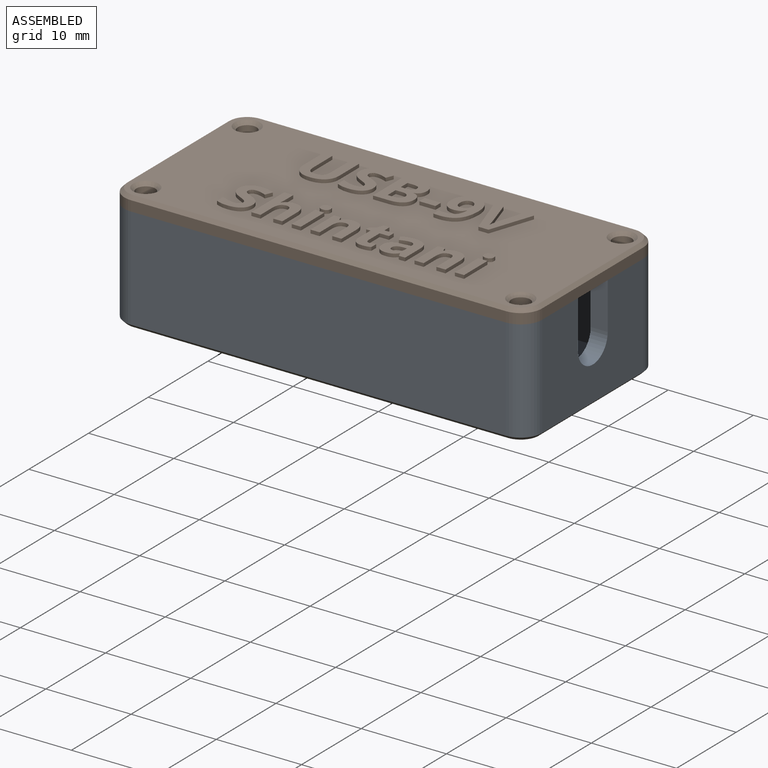
[diagram: assembled view]
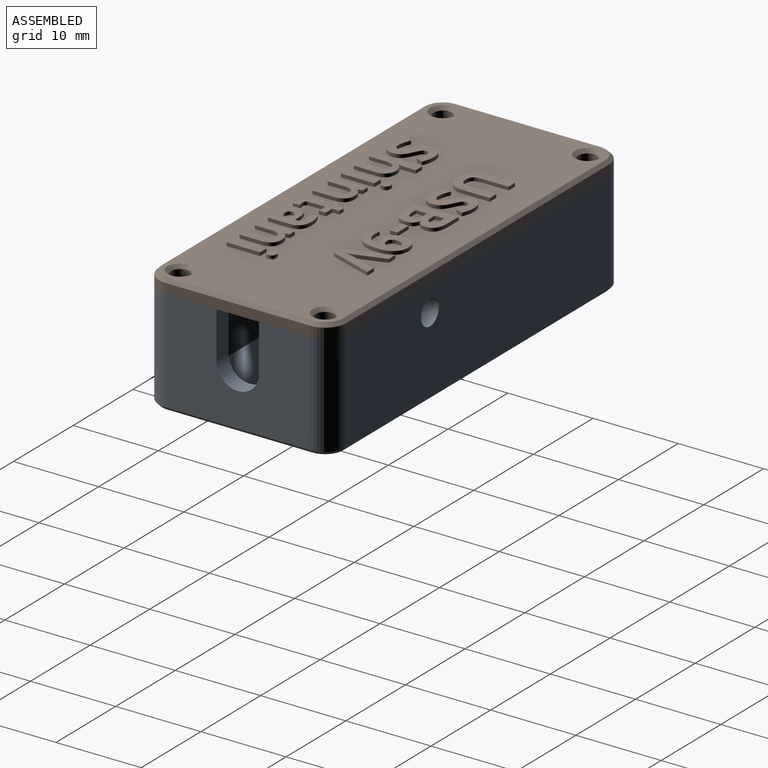
[diagram: assembled view, second angle]
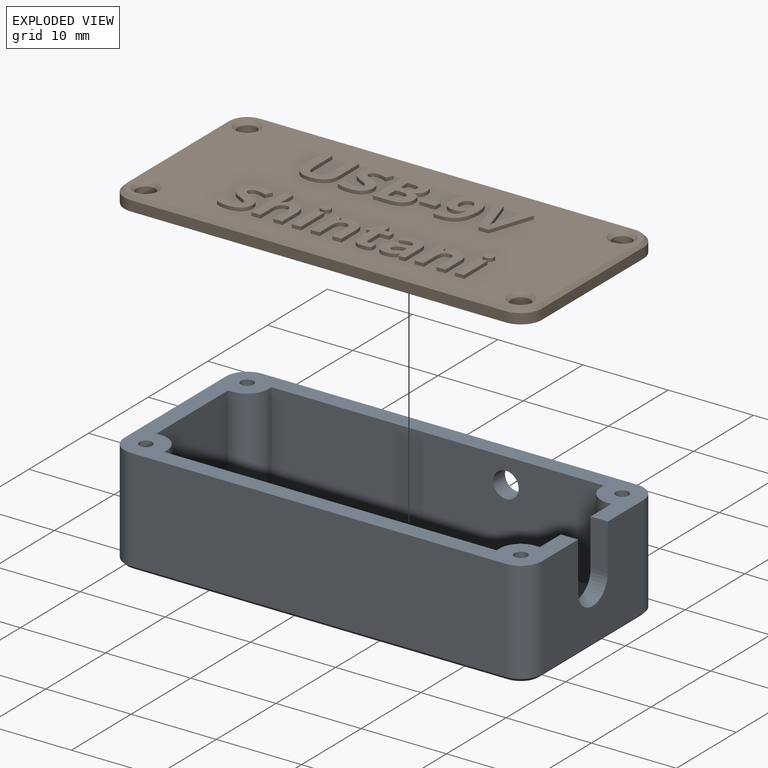
[diagram: exploded view]
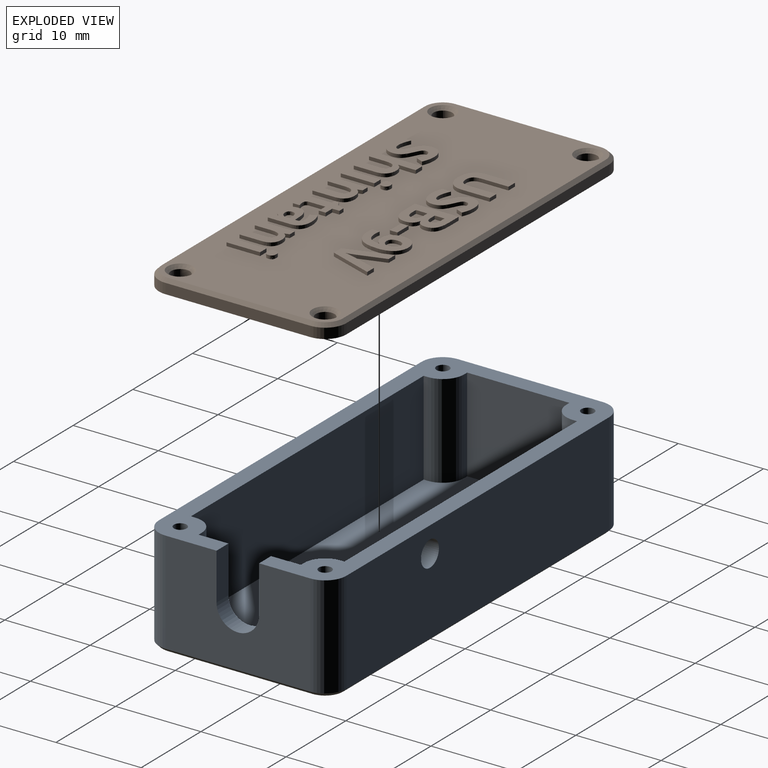
[diagram: exploded view, second angle]
ASSEMBLY  parts=2 mates=2
PART A: 47 faces, bbox 49x22x12.4 mm
  f0: plane 39x11mm, normal (0,-1,0), area 421.9mm2, adj f8,f9,f13,f19,f20
  f1: plane 39x11mm, normal (0,1,0), area 429mm2, adj f8,f9,f14,f17
  f2: plane 12x11mm, normal (-1,0,0), area 94.7mm2, adj f8,f9,f11,f12,f16,f21,f30
  f3: plane 12x11mm, normal (1,0,0), area 132mm2, adj f8,f9,f15,f18
  f4: plane 17x12mm, normal (1,0,0), area 166.7mm2, adj f8,f11,f12,f27,f28,f30,f40
  f5: plane 17x12mm, normal (-1,0,0), area 204mm2, adj f8,f26,f29,f45
  f6: plane 44x12mm, normal (0,-1,0), area 528mm2, adj f8,f26,f27,f44
  f7: plane 44x12mm, normal (0,1,0), area 520.9mm2, adj f8,f13,f28,f29,f41
  f8: plane 49x22mm, normal (0,0,1), area 276.2mm2, adj f0,f1,f2,f3,f4,f5,f6,f7
  f9: plane 45x18mm, normal (0,0,1), area 779.4mm2, adj f0,f1,f2,f3,f14,f15,f16,f17
  f10: plane 48.2x21.2mm, normal (0,0,-1), area 1018.1mm2, adj f39,f40,f41,f42,f43,f44,f45,f46
  f11: plane 5.5x2mm, normal (0,1,0), area 11mm2, adj f2,f4,f8,f30
  f12: plane 5.5x2mm, normal (0,-1,0), area 11mm2, adj f2,f4,f8,f30
  f13: cylinder r=1.5mm len=3mm, axis (0,1,0), area 18.8mm2, adj f0,f7
  f14: plane 11x0.5mm, normal (1,0,0), area 5.5mm2, adj f1,f8,f9,f25
  f15: plane 11x0.5mm, normal (0,1,0), area 5.5mm2, adj f3,f8,f9,f25
  f16: plane 11x0.5mm, normal (0,1,0), area 5.5mm2, adj f2,f8,f9,f24
  f17: plane 11x0.5mm, normal (-1,0,0), area 5.5mm2, adj f1,f8,f9,f24
  f18: plane 11x0.5mm, normal (0,-1,0), area 5.5mm2, adj f3,f8,f9,f23
  f19: plane 11x0.5mm, normal (1,0,0), area 5.5mm2, adj f0,f8,f9,f23
  f20: plane 11x0.5mm, normal (-1,0,0), area 5.5mm2, adj f0,f8,f9,f22
  f21: plane 11x0.5mm, normal (0,-1,0), area 5.5mm2, adj f2,f8,f9,f22
  f22: cylinder r=2.5mm len=11mm, axis (0,0,1), area 43.2mm2, adj f8,f9,f20,f21
  f23: cylinder r=2.5mm len=11mm, axis (0,0,1), area 43.2mm2, adj f8,f9,f18,f19
  f24: cylinder r=2.5mm len=11mm, axis (0,0,1), area 43.2mm2, adj f8,f9,f16,f17
  f25: cylinder r=2.5mm len=11mm, axis (0,0,1), area 43.2mm2, adj f8,f9,f14,f15
  f26: cylinder r=2.5mm len=12mm, axis (0,0,-1), area 47.1mm2, adj f5,f6,f8,f46
  f27: cylinder r=2.5mm len=12mm, axis (0,0,1), area 47.1mm2, adj f4,f6,f8,f42
  f28: cylinder r=2.5mm len=12mm, axis (0,0,-1), area 47.1mm2, adj f4,f7,f8,f39
  f29: cylinder r=2.5mm len=12mm, axis (0,0,1), area 47.1mm2, adj f5,f7,f8,f43
  f30: cylinder r=2.5mm len=5mm, axis (-1,0,0), area 15.7mm2, adj f2,f4,f11,f12
  f31: cylinder r=0.75mm len=8mm, axis (0,0,1), area 37.7mm2, adj f8,f32
  f32: cone r=0mm half-angle=59deg, axis (0,0,1), area 2.1mm2, adj f31
  f33: cylinder r=0.75mm len=8mm, axis (0,0,1), area 37.7mm2, adj f8,f34
  f34: cone r=0mm half-angle=59deg, axis (0,0,1), area 2.1mm2, adj f33
  f35: cylinder r=0.75mm len=8mm, axis (0,0,1), area 37.7mm2, adj f8,f36
  f36: cone r=0mm half-angle=59deg, axis (0,0,1), area 2.1mm2, adj f35
  f37: cylinder r=0.75mm len=8mm, axis (0,0,1), area 37.7mm2, adj f8,f38
  f38: cone r=0mm half-angle=59deg, axis (0,0,1), area 2.1mm2, adj f37
  f39: cone r=2.1mm half-angle=45deg, axis (0,0,1), area 2mm2, adj f10,f28,f40,f41
  f40: plane 17x0.4mm, normal (0.71,0,-0.71), area 9.6mm2, adj f4,f10,f39,f42
  f41: plane 44x0.4mm, normal (0,0.71,-0.71), area 24.9mm2, adj f7,f10,f39,f43
  f42: cone r=2.1mm half-angle=45deg, axis (0,0,1), area 2mm2, adj f10,f27,f40,f44
  f43: cone r=2.1mm half-angle=45deg, axis (0,0,1), area 2mm2, adj f10,f29,f41,f45
  f44: plane 44x0.4mm, normal (0,-0.71,-0.71), area 24.9mm2, adj f6,f10,f42,f46
  f45: plane 17x0.4mm, normal (-0.71,0,-0.71), area 9.6mm2, adj f5,f10,f43,f46
  f46: cone r=2.1mm half-angle=45deg, axis (0,0,1), area 2mm2, adj f10,f26,f44,f45
PART B: 294 faces, bbox 49x22x2 mm
  f0: plane 48.2x21.2mm, normal (0,0,1), area 856.5mm2, adj f14,f15,f16,f17,f18,f19,f20,f21
  f1: plane 17x1.2mm, normal (-1,0,0), area 20.4mm2, adj f5,f6,f9,f21
  f2: plane 44x1.2mm, normal (0,-1,0), area 52.8mm2, adj f5,f6,f7,f25
  f3: plane 17x1.2mm, normal (1,0,0), area 20.4mm2, adj f5,f7,f8,f22
  f4: plane 44x1.2mm, normal (0,1,0), area 52.8mm2, adj f5,f8,f9,f18
  f5: plane 49x22mm, normal (0,0,-1), area 1057.4mm2, adj f1,f2,f3,f4,f6,f7,f8,f9
  f6: cylinder r=2.5mm len=2.5mm, axis (0,0,-1), area 4.7mm2, adj f1,f2,f5,f23
  f7: cylinder r=2.5mm len=2.5mm, axis (0,0,1), area 4.7mm2, adj f2,f3,f5,f24
  f8: cylinder r=2.5mm len=2.5mm, axis (0,0,-1), area 4.7mm2, adj f3,f4,f5,f20
  f9: cylinder r=2.5mm len=2.5mm, axis (0,0,1), area 4.7mm2, adj f1,f4,f5,f19
  f10: cylinder r=1.1mm len=2.2mm, axis (0,0,1), area 8.3mm2, adj f5,f17
  f11: cylinder r=1.1mm len=2.2mm, axis (0,0,1), area 8.3mm2, adj f5,f16
  f12: cylinder r=1.1mm len=2.2mm, axis (0,0,1), area 8.3mm2, adj f5,f15
  f13: cylinder r=1.1mm len=2.2mm, axis (0,0,1), area 8.3mm2, adj f5,f14
  f14: cone r=1.1mm half-angle=45deg, axis (0,0,1), area 4.6mm2, adj f0,f13
  f15: cone r=1.1mm half-angle=45deg, axis (0,0,1), area 4.6mm2, adj f0,f12
  f16: cone r=1.1mm half-angle=45deg, axis (0,0,1), area 4.6mm2, adj f0,f11
  f17: cone r=1.1mm half-angle=45deg, axis (0,0,1), area 4.6mm2, adj f0,f10
  f18: plane 44x0.4mm, normal (0,0.71,0.71), area 24.9mm2, adj f0,f4,f19,f20
  f19: cone r=2.1mm half-angle=45deg, axis (0,0,-1), area 2mm2, adj f0,f9,f18,f21
  f20: cone r=2.1mm half-angle=45deg, axis (0,0,-1), area 2mm2, adj f0,f8,f18,f22
  f21: plane 17x0.4mm, normal (-0.71,0,0.71), area 9.6mm2, adj f0,f1,f19,f23
  f22: plane 17x0.4mm, normal (0.71,0,0.71), area 9.6mm2, adj f0,f3,f20,f24
  f23: cone r=2.1mm half-angle=45deg, axis (0,0,-1), area 2mm2, adj f0,f6,f21,f25
  f24: cone r=2.1mm half-angle=45deg, axis (0,0,-1), area 2mm2, adj f0,f7,f22,f25
  f25: plane 44x0.4mm, normal (0,-0.71,0.71), area 24.9mm2, adj f0,f2,f23,f24
  f26: plane 1.09x0.4mm, normal (0,1,0), area 0.4mm2, adj f0,f27,f40,f41
  f27: plane 3.14x0.4mm, normal (-1,0,0), area 1.3mm2, adj f0,f26,f28,f41
  f28: extruded ~0.88x0.4mm, area 0.4mm2, adj f0,f27,f29,f41
  f29: extruded ~0.78x0.4mm, area 0.3mm2, adj f0,f28,f30,f41
  f30: extruded ~0.79x0.4mm, area 0.3mm2, adj f0,f29,f31,f41
  f31: extruded ~0.87x0.4mm, area 0.4mm2, adj f0,f30,f32,f41
  f32: plane 3.15x0.4mm, normal (1,0,0), area 1.3mm2, adj f0,f31,f33,f41
  f33: plane 1.09x0.4mm, normal (0,1,0), area 0.4mm2, adj f0,f32,f34,f41
  f34: plane 3.31x0.4mm, normal (-1,0,0), area 1.3mm2, adj f0,f33,f35,f41
  f35: extruded ~1.39x0.55mm, area 0.6mm2, adj f0,f34,f36,f41
  f36: extruded ~1.54x0.51mm, area 0.7mm2, adj f0,f35,f37,f41
  f37: extruded ~1.14x0.4mm, area 0.5mm2, adj f0,f36,f38,f41
  f38: extruded ~0.74x0.66mm, area 0.4mm2, adj f0,f37,f39,f41
  f39: extruded ~1x0.4mm, area 0.4mm2, adj f0,f38,f40,f41
  f40: plane 3.33x0.4mm, normal (1,0,0), area 1.3mm2, adj f0,f26,f39,f41
  f41: plane 5.21x4.22mm, normal (0,0,1), area 12.1mm2, adj f26,f27,f28,f29,f30,f31,f32,f33
  f42: extruded ~0.85x0.4mm, area 0.4mm2, adj f0,f43,f69,f70
  f43: extruded ~0.99x0.69mm, area 0.5mm2, adj f0,f42,f44,f70
  f44: extruded ~0.69x0.4mm, area 0.3mm2, adj f0,f43,f45,f70
  f45: extruded ~0.4x0.21mm, area 0.1mm2, adj f0,f44,f46,f70
  f46: extruded ~0.4x0.25mm, area 0.1mm2, adj f0,f45,f47,f70
  f47: extruded ~0.4x0.38mm, area 0.2mm2, adj f0,f46,f48,f70
  f48: extruded ~0.48x0.4mm, area 0.2mm2, adj f0,f47,f49,f70
  f49: extruded ~0.53x0.4mm, area 0.2mm2, adj f0,f48,f50,f70
  f50: extruded ~0.68x0.4mm, area 0.3mm2, adj f0,f49,f51,f70
  f51: plane 0.85x0.4mm, normal (0.92,-0.38,0), area 0.4mm2, adj f0,f50,f52,f70
  f52: extruded ~0.76x0.4mm, area 0.3mm2, adj f0,f51,f53,f70
  f53: extruded ~0.77x0.4mm, area 0.3mm2, adj f0,f52,f54,f70
  f54: extruded ~1.28x0.4mm, area 0.5mm2, adj f0,f53,f55,f70
  f55: extruded ~1.07x0.46mm, area 0.5mm2, adj f0,f54,f56,f70
  f56: extruded ~0.63x0.4mm, area 0.3mm2, adj f0,f55,f57,f70
  f57: extruded ~0.48x0.4mm, area 0.2mm2, adj f0,f56,f58,f70
  f58: extruded ~0.71x0.43mm, area 0.3mm2, adj f0,f57,f59,f70
  f59: extruded ~0.67x0.4mm, area 0.3mm2, adj f0,f58,f60,f70
  f60: extruded ~0.4x0.25mm, area 0.1mm2, adj f0,f59,f61,f70
  f61: extruded ~0.4x0.27mm, area 0.1mm2, adj f0,f60,f62,f70
  f62: extruded ~0.41x0.4mm, area 0.2mm2, adj f0,f61,f63,f70
  f63: extruded ~0.55x0.4mm, area 0.2mm2, adj f0,f62,f64,f70
  f64: extruded ~0.66x0.4mm, area 0.3mm2, adj f0,f63,f65,f70
  f65: extruded ~0.88x0.4mm, area 0.4mm2, adj f0,f64,f66,f70
  f66: plane 1.01x0.4mm, normal (-1,0,0), area 0.4mm2, adj f0,f65,f67,f70
  f67: extruded ~1.46x0.4mm, area 0.6mm2, adj f0,f66,f68,f70
  f68: extruded ~1.39x0.4mm, area 0.6mm2, adj f0,f67,f69,f70
  f69: extruded ~1.1x0.5mm, area 0.5mm2, adj f0,f42,f68,f70
  f70: plane 5.29x3.35mm, normal (0,0,1), area 10mm2, adj f42,f43,f44,f45,f46,f47,f48,f49
  f71: plane 5.14x0.4mm, normal (-1,0,0), area 2.1mm2, adj f0,f72,f95,f96
  f72: plane 1.92x0.4mm, normal (0,-1,0), area 0.8mm2, adj f0,f71,f73,f96
  f73: extruded ~1.38x0.4mm, area 0.6mm2, adj f0,f72,f74,f96
  f74: extruded ~1.1x0.51mm, area 0.5mm2, adj f0,f73,f75,f96
  f75: extruded ~0.8x0.4mm, area 0.3mm2, adj f0,f74,f76,f96
  f76: extruded ~0.71x0.41mm, area 0.3mm2, adj f0,f75,f77,f96
  f77: plane 0.4x0.04mm, normal (1,0,0), area 0mm2, adj f0,f76,f78,f96
  f78: extruded ~0.58x0.4mm, area 0.3mm2, adj f0,f77,f79,f96
  f79: extruded ~0.76x0.4mm, area 0.3mm2, adj f0,f78,f80,f96
  f80: extruded ~0.99x0.49mm, area 0.5mm2, adj f0,f79,f81,f96
  f81: extruded ~1.59x0.4mm, area 0.7mm2, adj f0,f80,f95,f96
  f82: plane 1.14x0.4mm, normal (1,0,0), area 0.5mm2, adj f83,f93,f96,f98
  f83: plane 0.57x0.4mm, normal (0,-1,0), area 0.2mm2, adj f82,f84,f96,f98
  f84: extruded ~0.68x0.4mm, area 0.3mm2, adj f83,f85,f96,f98
  f85: extruded ~0.42x0.4mm, area 0.2mm2, adj f84,f86,f96,f98
  f86: extruded ~0.45x0.4mm, area 0.2mm2, adj f85,f87,f96,f98
  f87: extruded ~0.64x0.4mm, area 0.3mm2, adj f86,f93,f96,f98
  f88: plane 0.68x0.4mm, normal (0,-1,0), area 0.3mm2, adj f89,f94,f96,f97
  f89: extruded ~0.91x0.64mm, area 0.5mm2, adj f88,f90,f96,f97
  f90: extruded ~0.53x0.4mm, area 0.2mm2, adj f89,f91,f96,f97
  f91: extruded ~0.66x0.4mm, area 0.3mm2, adj f90,f92,f96,f97
  f92: plane 0.71x0.4mm, normal (0,1,0), area 0.3mm2, adj f91,f94,f96,f97
  f93: plane 0.63x0.4mm, normal (0,1,0), area 0.3mm2, adj f82,f87,f96,f98
  f94: plane 1.34x0.4mm, normal (1,0,0), area 0.5mm2, adj f88,f92,f96,f97
  f95: plane 1.6x0.4mm, normal (0,1,0), area 0.6mm2, adj f0,f71,f81,f96
  f96: plane 5.14x3.81mm, normal (0,0,1), area 14.4mm2, adj f71,f72,f73,f74,f75,f76,f77,f78
  f97: plane 1.59x1.34mm, normal (0,0,1), area 1.9mm2, adj f88,f89,f90,f91,f92,f94
  f98: plane 1.47x1.14mm, normal (0,0,1), area 1.5mm2, adj f82,f83,f84,f85,f86,f87,f93
  f99: plane 1.89x0.4mm, normal (0,-1,0), area 0.8mm2, adj f0,f100,f102,f103
  f100: plane 0.88x0.4mm, normal (1,0,0), area 0.4mm2, adj f0,f99,f101,f103
  f101: plane 1.89x0.4mm, normal (0,1,0), area 0.8mm2, adj f0,f100,f102,f103
  f102: plane 0.88x0.4mm, normal (-1,0,0), area 0.4mm2, adj f0,f99,f101,f103
  f103: plane 1.89x0.88mm, normal (0,0,1), area 1.7mm2, adj f99,f100,f101,f102
  f104: extruded ~1.21x0.4mm, area 0.5mm2, adj f0,f105,f129,f130
  f105: extruded ~0.78x0.66mm, area 0.4mm2, adj f0,f104,f106,f130
  f106: extruded ~1x0.4mm, area 0.4mm2, adj f0,f105,f107,f130
  f107: extruded ~1.28x0.48mm, area 0.6mm2, adj f0,f106,f108,f130
  f108: extruded ~1.31x0.47mm, area 0.6mm2, adj f0,f107,f109,f130
  f109: extruded ~1.2x0.4mm, area 0.5mm2, adj f0,f108,f110,f130
  f110: extruded ~1.06x0.43mm, area 0.5mm2, adj f0,f109,f111,f130
  f111: extruded ~0.67x0.4mm, area 0.3mm2, adj f0,f110,f112,f130
  f112: extruded ~0.47x0.46mm, area 0.3mm2, adj f0,f111,f113,f130
  f113: plane 0.4x0.04mm, normal (0,-1,0), area 0mm2, adj f0,f112,f114,f130
  f114: extruded ~0.95x0.4mm, area 0.4mm2, adj f0,f113,f115,f130
  f115: extruded ~0.54x0.5mm, area 0.3mm2, adj f0,f114,f116,f130
  f116: extruded ~0.9x0.4mm, area 0.4mm2, adj f0,f115,f117,f130
  f117: extruded ~0.62x0.4mm, area 0.2mm2, adj f0,f116,f118,f130
  f118: plane 0.87x0.4mm, normal (-1,0,0), area 0.3mm2, adj f0,f117,f119,f130
  f119: extruded ~0.69x0.4mm, area 0.3mm2, adj f0,f118,f120,f130
  f120: extruded ~1.94x0.75mm, area 0.9mm2, adj f0,f119,f129,f130
  f121: extruded ~0.56x0.4mm, area 0.3mm2, adj f122,f128,f130,f131
  f122: extruded ~0.71x0.4mm, area 0.3mm2, adj f121,f123,f130,f131
  f123: extruded ~0.5x0.4mm, area 0.2mm2, adj f122,f124,f130,f131
  f124: extruded ~0.57x0.4mm, area 0.2mm2, adj f123,f125,f130,f131
  f125: extruded ~0.52x0.4mm, area 0.2mm2, adj f124,f126,f130,f131
  f126: extruded ~0.59x0.4mm, area 0.3mm2, adj f125,f127,f130,f131
  f127: extruded ~0.67x0.4mm, area 0.3mm2, adj f126,f128,f130,f131
  f128: extruded ~0.53x0.4mm, area 0.2mm2, adj f121,f127,f130,f131
  f129: extruded ~2.27x0.64mm, area 1mm2, adj f0,f104,f120,f130
  f130: plane 5.27x3.63mm, normal (0,0,1), area 11.3mm2, adj f104,f105,f106,f107,f108,f109,f110,f111
  f131: plane 1.71x1.5mm, normal (0,0,1), area 2.1mm2, adj f121,f122,f123,f124,f125,f126,f127,f128
  f132: plane 3.06x0.97mm, normal (-0.95,0.3,0), area 1.3mm2, adj f0,f133,f141,f142
  f133: extruded ~1.13x0.4mm, area 0.5mm2, adj f0,f132,f134,f142
  f134: extruded ~0.5x0.4mm, area 0.2mm2, adj f0,f133,f135,f142
  f135: extruded ~0.63x0.4mm, area 0.3mm2, adj f0,f134,f136,f142
  f136: plane 3.06x0.97mm, normal (0.95,0.3,0), area 1.3mm2, adj f0,f135,f137,f142
  f137: plane 1.1x0.4mm, normal (0,1,0), area 0.4mm2, adj f0,f136,f138,f142
  f138: plane 5.14x1.74mm, normal (-0.95,-0.32,0), area 2.2mm2, adj f0,f137,f139,f142
  f139: plane 1.19x0.4mm, normal (0,-1,0), area 0.5mm2, adj f0,f138,f140,f142
  f140: plane 5.14x1.75mm, normal (0.95,-0.32,0), area 2.2mm2, adj f0,f139,f141,f142
  f141: plane 1.1x0.4mm, normal (0,1,0), area 0.4mm2, adj f0,f132,f140,f142
  f142: plane 5.14x4.68mm, normal (0,0,1), area 10.2mm2, adj f132,f133,f134,f135,f136,f137,f138,f139
  f143: extruded ~0.85x0.4mm, area 0.4mm2, adj f0,f144,f170,f171
  f144: extruded ~0.99x0.69mm, area 0.5mm2, adj f0,f143,f145,f171
  f145: extruded ~0.69x0.4mm, area 0.3mm2, adj f0,f144,f146,f171
  f146: extruded ~0.4x0.21mm, area 0.1mm2, adj f0,f145,f147,f171
  f147: extruded ~0.4x0.25mm, area 0.1mm2, adj f0,f146,f148,f171
  f148: extruded ~0.4x0.38mm, area 0.2mm2, adj f0,f147,f149,f171
  f149: extruded ~0.48x0.4mm, area 0.2mm2, adj f0,f148,f150,f171
  f150: extruded ~0.53x0.4mm, area 0.2mm2, adj f0,f149,f151,f171
  f151: extruded ~0.68x0.4mm, area 0.3mm2, adj f0,f150,f152,f171
  f152: plane 0.85x0.4mm, normal (0.92,-0.38,0), area 0.4mm2, adj f0,f151,f153,f171
  f153: extruded ~0.76x0.4mm, area 0.3mm2, adj f0,f152,f154,f171
  f154: extruded ~0.77x0.4mm, area 0.3mm2, adj f0,f153,f155,f171
  f155: extruded ~1.28x0.4mm, area 0.5mm2, adj f0,f154,f156,f171
  f156: extruded ~1.07x0.46mm, area 0.5mm2, adj f0,f155,f157,f171
  f157: extruded ~0.63x0.4mm, area 0.3mm2, adj f0,f156,f158,f171
  f158: extruded ~0.48x0.4mm, area 0.2mm2, adj f0,f157,f159,f171
  f159: extruded ~0.71x0.43mm, area 0.3mm2, adj f0,f158,f160,f171
  f160: extruded ~0.67x0.4mm, area 0.3mm2, adj f0,f159,f161,f171
  f161: extruded ~0.4x0.25mm, area 0.1mm2, adj f0,f160,f162,f171
  f162: extruded ~0.4x0.27mm, area 0.1mm2, adj f0,f161,f163,f171
  f163: extruded ~0.41x0.4mm, area 0.2mm2, adj f0,f162,f164,f171
  f164: extruded ~0.55x0.4mm, area 0.2mm2, adj f0,f163,f165,f171
  f165: extruded ~0.66x0.4mm, area 0.3mm2, adj f0,f164,f166,f171
  f166: extruded ~0.88x0.4mm, area 0.4mm2, adj f0,f165,f167,f171
  f167: plane 1.01x0.4mm, normal (-1,0,0), area 0.4mm2, adj f0,f166,f168,f171
  f168: extruded ~1.46x0.4mm, area 0.6mm2, adj f0,f167,f169,f171
  f169: extruded ~1.39x0.4mm, area 0.6mm2, adj f0,f168,f170,f171
  f170: extruded ~1.1x0.5mm, area 0.5mm2, adj f0,f143,f169,f171
  f171: plane 5.29x3.35mm, normal (0,0,1), area 10mm2, adj f143,f144,f145,f146,f147,f148,f149,f150
  f172: plane 2.56x0.4mm, normal (1,0,0), area 1mm2, adj f0,f173,f188,f189
  f173: extruded ~1.07x0.4mm, area 0.5mm2, adj f0,f172,f174,f189
  f174: extruded ~1.05x0.4mm, area 0.5mm2, adj f0,f173,f175,f189
  f175: extruded ~1.14x0.58mm, area 0.5mm2, adj f0,f174,f176,f189
  f176: plane 0.4x0.06mm, normal (0,1,0), area 0mm2, adj f0,f175,f177,f189
  f177: plane 0.4x0.32mm, normal (1,-0.08,0), area 0.1mm2, adj f0,f176,f178,f189
  f178: extruded ~0.61x0.4mm, area 0.2mm2, adj f0,f177,f179,f189
  f179: plane 1.12x0.4mm, normal (1,0,0), area 0.4mm2, adj f0,f178,f180,f189
  f180: plane 1.07x0.4mm, normal (0,1,0), area 0.4mm2, adj f0,f179,f181,f189
  f181: plane 5.47x0.4mm, normal (-1,0,0), area 2.2mm2, adj f0,f180,f182,f189
  f182: plane 1.07x0.4mm, normal (0,-1,0), area 0.4mm2, adj f0,f181,f183,f189
  f183: plane 1.85x0.4mm, normal (1,0,0), area 0.7mm2, adj f0,f182,f184,f189
  f184: extruded ~0.99x0.4mm, area 0.4mm2, adj f0,f183,f185,f189
  f185: extruded ~0.65x0.4mm, area 0.3mm2, adj f0,f184,f186,f189
  f186: extruded ~0.85x0.63mm, area 0.5mm2, adj f0,f185,f187,f189
  f187: plane 2.3x0.4mm, normal (-1,0,0), area 0.9mm2, adj f0,f186,f188,f189
  f188: plane 1.07x0.4mm, normal (0,-1,0), area 0.4mm2, adj f0,f172,f187,f189
  f189: plane 5.47x3.63mm, normal (0,0,1), area 11.1mm2, adj f172,f173,f174,f175,f176,f177,f178,f179
  f190: extruded ~0.58x0.53mm, area 0.4mm2, adj f0,f191,f194,f195
  f191: extruded ~0.44x0.4mm, area 0.2mm2, adj f0,f190,f192,f195
  f192: extruded ~0.4x0.39mm, area 0.2mm2, adj f0,f191,f193,f195
  f193: extruded ~0.58x0.52mm, area 0.4mm2, adj f0,f192,f194,f195
  f194: extruded ~0.58x0.52mm, area 0.4mm2, adj f0,f190,f193,f195
  f195: plane 1.17x1.05mm, normal (0,0,1), area 1mm2, adj f190,f191,f192,f193,f194
  f196: plane 3.93x0.4mm, normal (1,0,0), area 1.6mm2, adj f0,f197,f199,f200
  f197: plane 1.07x0.4mm, normal (0,1,0), area 0.4mm2, adj f0,f196,f198,f200
  f198: plane 3.93x0.4mm, normal (-1,0,0), area 1.6mm2, adj f0,f197,f199,f200
  f199: plane 1.07x0.4mm, normal (0,-1,0), area 0.4mm2, adj f0,f196,f198,f200
  f200: plane 3.93x1.07mm, normal (0,0,1), area 4.2mm2, adj f196,f197,f198,f199
  f201: plane 2.56x0.4mm, normal (1,0,0), area 1mm2, adj f0,f202,f217,f218
  f202: extruded ~1.07x0.4mm, area 0.5mm2, adj f0,f201,f203,f218
  f203: extruded ~1.04x0.4mm, area 0.5mm2, adj f0,f202,f204,f218
  f204: extruded ~0.72x0.4mm, area 0.3mm2, adj f0,f203,f205,f218
  f205: extruded ~0.49x0.43mm, area 0.3mm2, adj f0,f204,f206,f218
  f206: plane 0.4x0.06mm, normal (0,1,0), area 0mm2, adj f0,f205,f207,f218
  f207: plane 0.5x0.4mm, normal (0.96,0.28,0), area 0.2mm2, adj f0,f206,f208,f218
  f208: plane 0.82x0.4mm, normal (0,1,0), area 0.3mm2, adj f0,f207,f209,f218
  f209: plane 3.93x0.4mm, normal (-1,0,0), area 1.6mm2, adj f0,f208,f210,f218
  f210: plane 1.07x0.4mm, normal (0,-1,0), area 0.4mm2, adj f0,f209,f211,f218
  f211: plane 1.85x0.4mm, normal (1,0,0), area 0.7mm2, adj f0,f210,f212,f218
  f212: extruded ~1x0.4mm, area 0.4mm2, adj f0,f211,f213,f218
  f213: extruded ~0.65x0.4mm, area 0.3mm2, adj f0,f212,f214,f218
  f214: extruded ~0.48x0.4mm, area 0.2mm2, adj f0,f213,f215,f218
  f215: extruded ~0.64x0.4mm, area 0.3mm2, adj f0,f214,f216,f218
  f216: plane 2.3x0.4mm, normal (-1,0,0), area 0.9mm2, adj f0,f215,f217,f218
  f217: plane 1.07x0.4mm, normal (0,-1,0), area 0.4mm2, adj f0,f201,f216,f218
  f218: plane 4.01x3.63mm, normal (0,0,1), area 9.4mm2, adj f201,f202,f203,f204,f205,f206,f207,f208
  f219: extruded ~0.4x0.34mm, area 0.1mm2, adj f0,f220,f236,f237
  f220: extruded ~0.4x0.34mm, area 0.1mm2, adj f0,f219,f221,f237
  f221: plane 1.9x0.4mm, normal (1,0,0), area 0.8mm2, adj f0,f220,f222,f237
  f222: plane 1.1x0.4mm, normal (0,-1,0), area 0.4mm2, adj f0,f221,f223,f237
  f223: plane 0.81x0.4mm, normal (1,0,0), area 0.3mm2, adj f0,f222,f224,f237
  f224: plane 1.1x0.4mm, normal (0,1,0), area 0.4mm2, adj f0,f223,f225,f237
  f225: plane 0.84x0.4mm, normal (1,0,0), area 0.3mm2, adj f0,f224,f226,f237
  f226: plane 0.69x0.4mm, normal (0,1,0), area 0.3mm2, adj f0,f225,f227,f237
  f227: plane 0.83x0.4mm, normal (-0.94,0.35,0), area 0.4mm2, adj f0,f226,f228,f237
  f228: plane 0.59x0.4mm, normal (-0.52,0.85,0), area 0.3mm2, adj f0,f227,f229,f237
  f229: plane 0.45x0.4mm, normal (-1,0,0), area 0.2mm2, adj f0,f228,f230,f237
  f230: plane 0.51x0.4mm, normal (0,-1,0), area 0.2mm2, adj f0,f229,f231,f237
  f231: plane 1.9x0.4mm, normal (-1,0,0), area 0.8mm2, adj f0,f230,f232,f237
  f232: extruded ~0.98x0.4mm, area 0.4mm2, adj f0,f231,f233,f237
  f233: extruded ~0.94x0.4mm, area 0.4mm2, adj f0,f232,f234,f237
  f234: extruded ~0.99x0.4mm, area 0.4mm2, adj f0,f233,f235,f237
  f235: plane 0.8x0.4mm, normal (1,0,0), area 0.3mm2, adj f0,f234,f236,f237
  f236: extruded ~0.68x0.4mm, area 0.3mm2, adj f0,f219,f235,f237
  f237: plane 4.84x2.73mm, normal (0,0,1), area 6.9mm2, adj f219,f220,f221,f222,f223,f224,f225,f226
  f238: plane 0.75x0.4mm, normal (0,-1,0), area 0.3mm2, adj f0,f239,f262,f263
  f239: plane 2.62x0.4mm, normal (1,0,0), area 1mm2, adj f0,f238,f240,f263
  f240: extruded ~1.05x0.42mm, area 0.5mm2, adj f0,f239,f241,f263
  f241: extruded ~1.21x0.4mm, area 0.5mm2, adj f0,f240,f242,f263
  f242: extruded ~1.51x0.4mm, area 0.6mm2, adj f0,f241,f243,f263
  f243: plane 0.73x0.4mm, normal (-0.9,-0.44,0), area 0.3mm2, adj f0,f242,f244,f263
  f244: extruded ~1.11x0.4mm, area 0.5mm2, adj f0,f243,f245,f263
  f245: extruded ~0.61x0.6mm, area 0.4mm2, adj f0,f244,f246,f263
  f246: plane 0.4x0.17mm, normal (-1,0,0), area 0.1mm2, adj f0,f245,f247,f263
  f247: plane 0.68x0.4mm, normal (-0.03,1,0), area 0.3mm2, adj f0,f246,f248,f263
  f248: extruded ~1.32x0.4mm, area 0.6mm2, adj f0,f247,f249,f263
  f249: extruded ~0.92x0.44mm, area 0.4mm2, adj f0,f248,f250,f263
  f250: extruded ~0.92x0.4mm, area 0.4mm2, adj f0,f249,f251,f263
  f251: extruded ~0.89x0.4mm, area 0.4mm2, adj f0,f250,f252,f263
  f252: extruded ~0.75x0.4mm, area 0.3mm2, adj f0,f251,f253,f263
  f253: extruded ~0.56x0.47mm, area 0.3mm2, adj f0,f252,f254,f263
  f254: plane 0.4x0.03mm, normal (0,-1,0), area 0mm2, adj f0,f253,f262,f263
  f255: plane 0.4x0.32mm, normal (-1,0,0), area 0.1mm2, adj f256,f261,f263,f264
  f256: extruded ~0.57x0.4mm, area 0.3mm2, adj f255,f257,f263,f264
  f257: extruded ~0.6x0.4mm, area 0.3mm2, adj f256,f258,f263,f264
  f258: extruded ~0.52x0.45mm, area 0.3mm2, adj f257,f259,f263,f264
  f259: extruded ~0.47x0.4mm, area 0.2mm2, adj f258,f260,f263,f264
  f260: extruded ~0.7x0.4mm, area 0.3mm2, adj f259,f261,f263,f264
  f261: plane 0.42x0.4mm, normal (0.04,-1,0), area 0.2mm2, adj f255,f260,f263,f264
  f262: plane 0.53x0.4mm, normal (-0.93,-0.36,0), area 0.2mm2, adj f0,f238,f254,f263
  f263: plane 4.09x3.51mm, normal (0,0,1), area 9.5mm2, adj f238,f239,f240,f241,f242,f243,f244,f245
  f264: plane 1.34x1.11mm, normal (0,0,1), area 1.2mm2, adj f255,f256,f257,f258,f259,f260,f261
  f265: plane 2.56x0.4mm, normal (1,0,0), area 1mm2, adj f0,f266,f281,f282
  f266: extruded ~1.07x0.4mm, area 0.5mm2, adj f0,f265,f267,f282
  f267: extruded ~1.04x0.4mm, area 0.5mm2, adj f0,f266,f268,f282
  f268: extruded ~0.72x0.4mm, area 0.3mm2, adj f0,f267,f269,f282
  f269: extruded ~0.49x0.43mm, area 0.3mm2, adj f0,f268,f270,f282
  f270: plane 0.4x0.06mm, normal (0,1,0), area 0mm2, adj f0,f269,f271,f282
  f271: plane 0.5x0.4mm, normal (0.96,0.28,0), area 0.2mm2, adj f0,f270,f272,f282
  f272: plane 0.82x0.4mm, normal (0,1,0), area 0.3mm2, adj f0,f271,f273,f282
  f273: plane 3.93x0.4mm, normal (-1,0,0), area 1.6mm2, adj f0,f272,f274,f282
  f274: plane 1.07x0.4mm, normal (0,-1,0), area 0.4mm2, adj f0,f273,f275,f282
  f275: plane 1.85x0.4mm, normal (1,0,0), area 0.7mm2, adj f0,f274,f276,f282
  f276: extruded ~1x0.4mm, area 0.4mm2, adj f0,f275,f277,f282
  f277: extruded ~0.65x0.4mm, area 0.3mm2, adj f0,f276,f278,f282
  f278: extruded ~0.48x0.4mm, area 0.2mm2, adj f0,f277,f279,f282
  f279: extruded ~0.64x0.4mm, area 0.3mm2, adj f0,f278,f280,f282
  f280: plane 2.3x0.4mm, normal (-1,0,0), area 0.9mm2, adj f0,f279,f281,f282
  f281: plane 1.07x0.4mm, normal (0,-1,0), area 0.4mm2, adj f0,f265,f280,f282
  f282: plane 4.01x3.63mm, normal (0,0,1), area 9.4mm2, adj f265,f266,f267,f268,f269,f270,f271,f272
  f283: extruded ~0.58x0.53mm, area 0.4mm2, adj f0,f284,f287,f288
  f284: extruded ~0.44x0.4mm, area 0.2mm2, adj f0,f283,f285,f288
  f285: extruded ~0.4x0.39mm, area 0.2mm2, adj f0,f284,f286,f288
  f286: extruded ~0.58x0.52mm, area 0.4mm2, adj f0,f285,f287,f288
  f287: extruded ~0.58x0.52mm, area 0.4mm2, adj f0,f283,f286,f288
  f288: plane 1.17x1.05mm, normal (0,0,1), area 1mm2, adj f283,f284,f285,f286,f287
  f289: plane 3.93x0.4mm, normal (1,0,0), area 1.6mm2, adj f0,f290,f292,f293
  f290: plane 1.07x0.4mm, normal (0,1,0), area 0.4mm2, adj f0,f289,f291,f293
  f291: plane 3.93x0.4mm, normal (-1,0,0), area 1.6mm2, adj f0,f290,f292,f293
  f292: plane 1.07x0.4mm, normal (0,-1,0), area 0.4mm2, adj f0,f289,f291,f293
  f293: plane 3.93x1.07mm, normal (0,0,1), area 4.2mm2, adj f289,f290,f291,f292
PLACE A t=(1.68,7.41,1.82)mm
PLACE B t=(1.68,7.41,12.82)mm
MATE fastened A.f23 <-> B.f9  axis (0,0,1) through (2.18,24.91,12.82)mm
MATE planar A.f8 <-> B.f5  axis (0,0,1) through (1.68,22.41,12.82)mm
